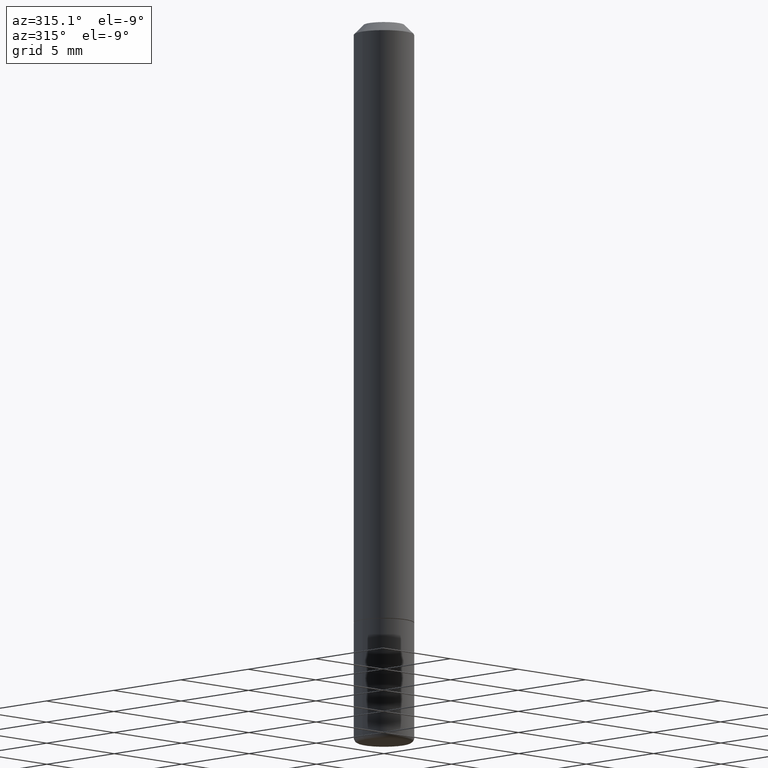
[diagram: clean part render]
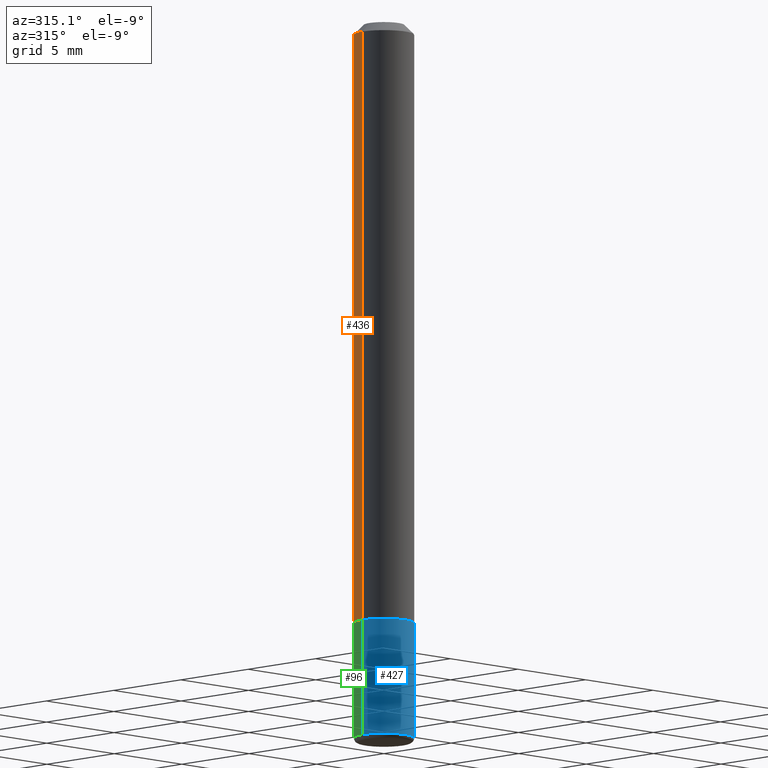
[diagram: same view with three faces highlighted in distinct colors, each labeled with its STEP entity id]
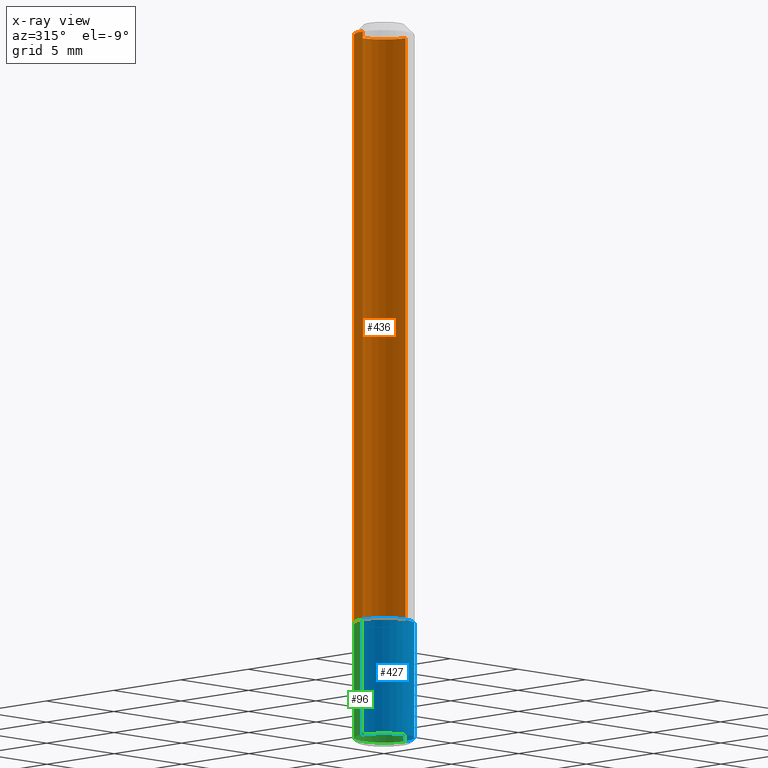
[diagram: x-ray of the same camera — body ghosted, the three highlighted faces saturated]
A machine part, auxiliary view with three faces highlighted in distinct colors.
The next image is the same camera in x-ray (body ghosted, the three faces saturated) — at least one of them is partly hidden behind the body in this view.
Their STEP definitions:

[orange] entity #436 — the highlighted cylindrical surface (edge-blend (fillet) strip) has radius 1.5875 mm, axis along (-0, 0, 1).
#11 = ORIENTED_EDGE ( 'NONE', *, *, #371, .T. ) ;
#16 = AXIS2_PLACEMENT_3D ( 'NONE', #85, #352, #354 ) ;
#19 = DIRECTION ( 'NONE',  ( 1.000000000000000000, -6.982962677686267499E-15, 4.876176775795935793E-29 ) ) ;
#26 = AXIS2_PLACEMENT_3D ( 'NONE', #181, #320, #19 ) ;
#49 = FACE_OUTER_BOUND ( 'NONE', #400, .T. ) ;
#53 = VERTEX_POINT ( 'NONE', #173 ) ;
#55 = EDGE_CURVE ( 'NONE', #53, #198, #271, .T. ) ;
#81 = VERTEX_POINT ( 'NONE', #335 ) ;
#85 = CARTESIAN_POINT ( 'NONE',  ( 3.054390538925235704E-29, -4.360860192215088675E-15, -1.248999999999999888 ) ) ;
#131 = AXIS2_PLACEMENT_3D ( 'NONE', #142, #301, #412 ) ;
#142 = CARTESIAN_POINT ( 'NONE',  ( 4.890937612370288923E-31, -6.982962677686312563E-17, -0.02000000000000006287 ) ) ;
#147 = ORIENTED_EDGE ( 'NONE', *, *, #429, .F. ) ;
#154 = ORIENTED_EDGE ( 'NONE', *, *, #55, .T. ) ;
#155 = DIRECTION ( 'NONE',  ( -2.445468806185136877E-29, 3.491481338843145188E-15, 1.000000000000000000 ) ) ;
#163 = VERTEX_POINT ( 'NONE', #174 ) ;
#173 = CARTESIAN_POINT ( 'NONE',  ( -0.06250000000000008327, -1.771255699645910610E-15, -1.248999999999999888 ) ) ;
#174 = CARTESIAN_POINT ( 'NONE',  ( 0.06249999999999995143, -4.986107516375835278E-16, -0.02000000000000006287 ) ) ;
#181 = CARTESIAN_POINT ( 'NONE',  ( 0.000000000000000000, 0.000000000000000000, 0.000000000000000000 ) ) ;
#198 = VERTEX_POINT ( 'NONE', #404 ) ;
#204 = CARTESIAN_POINT ( 'NONE',  ( -0.06250000000000001388, 4.440892098500627148E-16, -3.074334431409317165E-30 ) ) ;
#216 = CARTESIAN_POINT ( 'NONE',  ( 0.06250000000000001388, -4.364351673553918173E-16, 3.047610484872460571E-30 ) ) ;
#220 = ORIENTED_EDGE ( 'NONE', *, *, #297, .F. ) ;
#235 = VECTOR ( 'NONE', #155, 39.37007874015748143 ) ;
#245 = LINE ( 'NONE', #216, #235 ) ;
#265 = CIRCLE ( 'NONE', #131, 0.06249999999999995143 ) ;
#271 = LINE ( 'NONE', #204, #369 ) ;
#297 = EDGE_CURVE ( 'NONE', #163, #198, #265, .T. ) ;
#301 = DIRECTION ( 'NONE',  ( -2.445468806185136597E-29, 3.491481338843145583E-15, 1.000000000000000000 ) ) ;
#320 = DIRECTION ( 'NONE',  ( -2.445468806185136597E-29, 3.491481338843145583E-15, 1.000000000000000000 ) ) ;
#335 = CARTESIAN_POINT ( 'NONE',  ( 0.06250000000000008327, -4.797295359570480345E-15, -1.248999999999999888 ) ) ;
#340 = DIRECTION ( 'NONE',  ( -2.445468806185136877E-29, 3.491481338843145188E-15, 1.000000000000000000 ) ) ;
#352 = DIRECTION ( 'NONE',  ( -2.445468806185136597E-29, 3.491481338843145583E-15, 1.000000000000000000 ) ) ;
#354 = DIRECTION ( 'NONE',  ( 1.000000000000000000, -6.982962677686261189E-15, 0.000000000000000000 ) ) ;
#369 = VECTOR ( 'NONE', #340, 39.37007874015748143 ) ;
#371 = EDGE_CURVE ( 'NONE', #81, #53, #398, .T. ) ;
#383 = CYLINDRICAL_SURFACE ( 'NONE', #26, 0.06250000000000001388 ) ;
#398 = CIRCLE ( 'NONE', #16, 0.06250000000000008327 ) ;
#400 = EDGE_LOOP ( 'NONE', ( #11, #154, #220, #147 ) ) ;
#404 = CARTESIAN_POINT ( 'NONE',  ( -0.06249999999999995143, 3.666055405785281740E-16, -0.02000000000000006287 ) ) ;
#412 = DIRECTION ( 'NONE',  ( 1.000000000000000000, -6.982962677686266711E-15, 0.000000000000000000 ) ) ;
#429 = EDGE_CURVE ( 'NONE', #81, #163, #245, .T. ) ;
#436 = ADVANCED_FACE ( 'NONE', ( #49 ), #383, .T. ) ;

[blue] entity #427 — the highlighted cylindrical surface (edge-blend (fillet) strip) has radius 1.5875 mm, axis along (-0, 0, 1).
#2 = LINE ( 'NONE', #68, #196 ) ;
#5 = VECTOR ( 'NONE', #238, 39.37007874015748143 ) ;
#8 = CARTESIAN_POINT ( 'NONE',  ( 3.056836007731421306E-29, -4.364351673553932471E-15, -1.250000000000000000 ) ) ;
#15 = VERTEX_POINT ( 'NONE', #411 ) ;
#39 = CARTESIAN_POINT ( 'NONE',  ( 0.06249999999999993755, -4.364351673553912750E-16, 3.047610484872456718E-30 ) ) ;
#64 = EDGE_CURVE ( 'NONE', #15, #426, #111, .T. ) ;
#66 = VERTEX_POINT ( 'NONE', #240 ) ;
#67 = ORIENTED_EDGE ( 'NONE', *, *, #141, .T. ) ;
#68 = CARTESIAN_POINT ( 'NONE',  ( -0.06249999999999993755, 4.440892098500621724E-16, -3.074334431409313311E-30 ) ) ;
#97 = ORIENTED_EDGE ( 'NONE', *, *, #128, .F. ) ;
#100 = DIRECTION ( 'NONE',  ( -2.445468806185136597E-29, 3.491481338843145583E-15, 1.000000000000000000 ) ) ;
#102 = CARTESIAN_POINT ( 'NONE',  ( -0.06250000000000002776, -4.339240224365047278E-15, -1.250000000000000000 ) ) ;
#111 = LINE ( 'NONE', #39, #5 ) ;
#119 = ORIENTED_EDGE ( 'NONE', *, *, #64, .T. ) ;
#128 = EDGE_CURVE ( 'NONE', #66, #214, #2, .T. ) ;
#141 = EDGE_CURVE ( 'NONE', #66, #15, #337, .T. ) ;
#146 = CARTESIAN_POINT ( 'NONE',  ( 0.000000000000000000, 0.000000000000000000, 0.000000000000000000 ) ) ;
#157 = EDGE_CURVE ( 'NONE', #214, #426, #402, .T. ) ;
#196 = VECTOR ( 'NONE', #413, 39.37007874015748143 ) ;
#202 = AXIS2_PLACEMENT_3D ( 'NONE', #347, #207, #405 ) ;
#207 = DIRECTION ( 'NONE',  ( -2.445468806185136597E-29, 3.491481338843145583E-15, 1.000000000000000000 ) ) ;
#214 = VERTEX_POINT ( 'NONE', #102 ) ;
#238 = DIRECTION ( 'NONE',  ( -2.445468806185136877E-29, 3.491481338843145188E-15, 1.000000000000000000 ) ) ;
#240 = CARTESIAN_POINT ( 'NONE',  ( -0.06249999999999986122, -4.758217985026226278E-15, -1.490000000000000213 ) ) ;
#248 = DIRECTION ( 'NONE',  ( 1.000000000000000000, -6.982962677686267499E-15, 4.876176775795935793E-29 ) ) ;
#260 = AXIS2_PLACEMENT_3D ( 'NONE', #146, #280, #248 ) ;
#280 = DIRECTION ( 'NONE',  ( -2.445468806185136597E-29, 3.491481338843145583E-15, 1.000000000000000000 ) ) ;
#299 = AXIS2_PLACEMENT_3D ( 'NONE', #8, #100, #376 ) ;
#315 = CARTESIAN_POINT ( 'NONE',  ( 0.06250000000000001388, -4.800786840909324141E-15, -1.250000000000000000 ) ) ;
#321 = EDGE_LOOP ( 'NONE', ( #97, #67, #119, #364 ) ) ;
#337 = CIRCLE ( 'NONE', #202, 0.06249999999999986122 ) ;
#347 = CARTESIAN_POINT ( 'NONE',  ( 3.643748521215853910E-29, -5.202307194876288105E-15, -1.490000000000000213 ) ) ;
#364 = ORIENTED_EDGE ( 'NONE', *, *, #157, .F. ) ;
#376 = DIRECTION ( 'NONE',  ( 1.000000000000000000, -6.982962677686269077E-15, 0.000000000000000000 ) ) ;
#389 = FACE_OUTER_BOUND ( 'NONE', #321, .T. ) ;
#402 = CIRCLE ( 'NONE', #299, 0.06250000000000001388 ) ;
#405 = DIRECTION ( 'NONE',  ( 1.000000000000000000, -6.982962677686263555E-15, 0.000000000000000000 ) ) ;
#411 = CARTESIAN_POINT ( 'NONE',  ( 0.06249999999999986122, -5.638742362231678197E-15, -1.490000000000000213 ) ) ;
#413 = DIRECTION ( 'NONE',  ( -2.445468806185136877E-29, 3.491481338843145188E-15, 1.000000000000000000 ) ) ;
#422 = CYLINDRICAL_SURFACE ( 'NONE', #260, 0.06249999999999993755 ) ;
#426 = VERTEX_POINT ( 'NONE', #315 ) ;
#427 = ADVANCED_FACE ( 'NONE', ( #389 ), #422, .T. ) ;

[green] entity #96 — the highlighted cylindrical surface (edge-blend (fillet) strip) has radius 1.5875 mm, axis along (-0, 0, 1).
#2 = LINE ( 'NONE', #68, #196 ) ;
#4 = DIRECTION ( 'NONE',  ( -2.445468806185136597E-29, 3.491481338843145583E-15, 1.000000000000000000 ) ) ;
#5 = VECTOR ( 'NONE', #238, 39.37007874015748143 ) ;
#10 = DIRECTION ( 'NONE',  ( -2.445468806185136597E-29, 3.491481338843145583E-15, 1.000000000000000000 ) ) ;
#15 = VERTEX_POINT ( 'NONE', #411 ) ;
#39 = CARTESIAN_POINT ( 'NONE',  ( 0.06249999999999993755, -4.364351673553912750E-16, 3.047610484872456718E-30 ) ) ;
#43 = DIRECTION ( 'NONE',  ( 1.000000000000000000, -6.982962677686267499E-15, 4.876176775795935793E-29 ) ) ;
#58 = ORIENTED_EDGE ( 'NONE', *, *, #128, .T. ) ;
#61 = AXIS2_PLACEMENT_3D ( 'NONE', #310, #377, #43 ) ;
#64 = EDGE_CURVE ( 'NONE', #15, #426, #111, .T. ) ;
#66 = VERTEX_POINT ( 'NONE', #240 ) ;
#68 = CARTESIAN_POINT ( 'NONE',  ( -0.06249999999999993755, 4.440892098500621724E-16, -3.074334431409313311E-30 ) ) ;
#76 = EDGE_CURVE ( 'NONE', #15, #66, #401, .T. ) ;
#96 = ADVANCED_FACE ( 'NONE', ( #134 ), #275, .T. ) ;
#102 = CARTESIAN_POINT ( 'NONE',  ( -0.06250000000000002776, -4.339240224365047278E-15, -1.250000000000000000 ) ) ;
#111 = LINE ( 'NONE', #39, #5 ) ;
#116 = CARTESIAN_POINT ( 'NONE',  ( 3.056836007731421306E-29, -4.364351673553932471E-15, -1.250000000000000000 ) ) ;
#128 = EDGE_CURVE ( 'NONE', #66, #214, #2, .T. ) ;
#132 = CIRCLE ( 'NONE', #203, 0.06250000000000001388 ) ;
#134 = FACE_OUTER_BOUND ( 'NONE', #246, .T. ) ;
#170 = DIRECTION ( 'NONE',  ( 1.000000000000000000, -6.982962677686263555E-15, 0.000000000000000000 ) ) ;
#196 = VECTOR ( 'NONE', #413, 39.37007874015748143 ) ;
#203 = AXIS2_PLACEMENT_3D ( 'NONE', #116, #10, #425 ) ;
#214 = VERTEX_POINT ( 'NONE', #102 ) ;
#238 = DIRECTION ( 'NONE',  ( -2.445468806185136877E-29, 3.491481338843145188E-15, 1.000000000000000000 ) ) ;
#240 = CARTESIAN_POINT ( 'NONE',  ( -0.06249999999999986122, -4.758217985026226278E-15, -1.490000000000000213 ) ) ;
#246 = EDGE_LOOP ( 'NONE', ( #350, #58, #387, #353 ) ) ;
#275 = CYLINDRICAL_SURFACE ( 'NONE', #61, 0.06249999999999993755 ) ;
#306 = CARTESIAN_POINT ( 'NONE',  ( 3.643748521215853910E-29, -5.202307194876288105E-15, -1.490000000000000213 ) ) ;
#310 = CARTESIAN_POINT ( 'NONE',  ( 0.000000000000000000, 0.000000000000000000, 0.000000000000000000 ) ) ;
#315 = CARTESIAN_POINT ( 'NONE',  ( 0.06250000000000001388, -4.800786840909324141E-15, -1.250000000000000000 ) ) ;
#350 = ORIENTED_EDGE ( 'NONE', *, *, #76, .T. ) ;
#353 = ORIENTED_EDGE ( 'NONE', *, *, #64, .F. ) ;
#377 = DIRECTION ( 'NONE',  ( -2.445468806185136597E-29, 3.491481338843145583E-15, 1.000000000000000000 ) ) ;
#387 = ORIENTED_EDGE ( 'NONE', *, *, #415, .F. ) ;
#392 = AXIS2_PLACEMENT_3D ( 'NONE', #306, #4, #170 ) ;
#401 = CIRCLE ( 'NONE', #392, 0.06249999999999986122 ) ;
#411 = CARTESIAN_POINT ( 'NONE',  ( 0.06249999999999986122, -5.638742362231678197E-15, -1.490000000000000213 ) ) ;
#413 = DIRECTION ( 'NONE',  ( -2.445468806185136877E-29, 3.491481338843145188E-15, 1.000000000000000000 ) ) ;
#415 = EDGE_CURVE ( 'NONE', #426, #214, #132, .T. ) ;
#425 = DIRECTION ( 'NONE',  ( 1.000000000000000000, -6.982962677686269077E-15, 0.000000000000000000 ) ) ;
#426 = VERTEX_POINT ( 'NONE', #315 ) ;